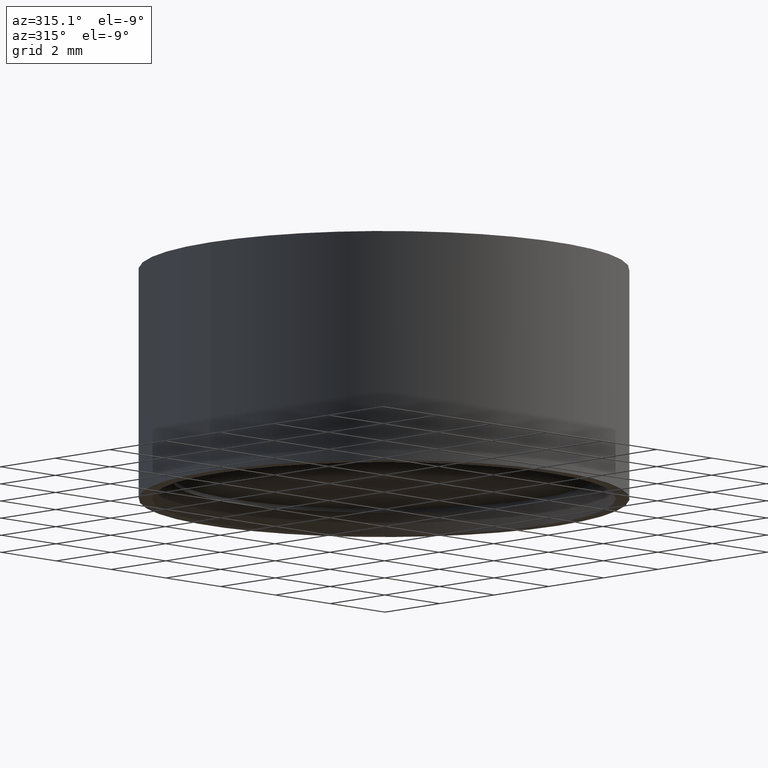
[diagram: clean part render]
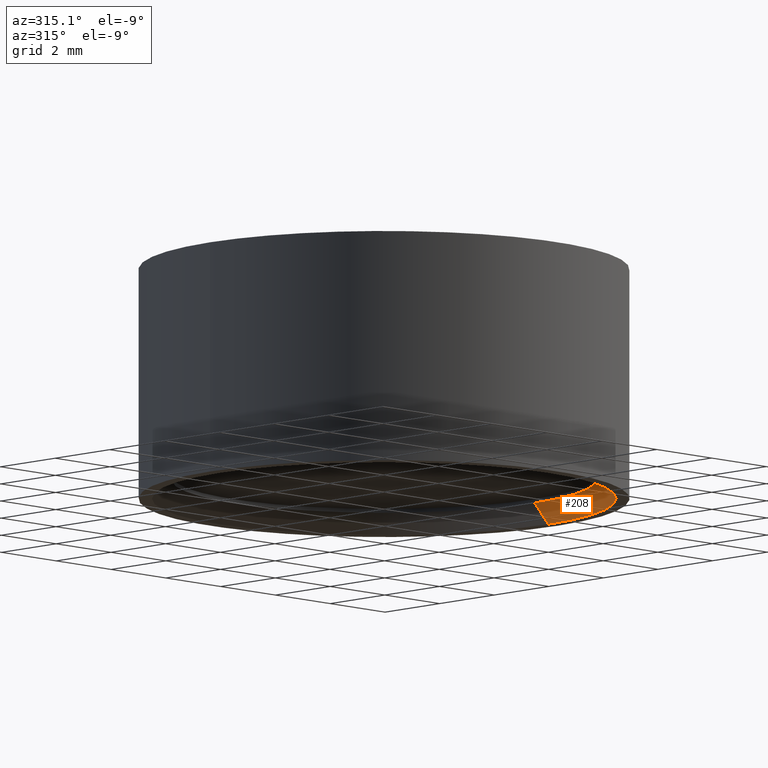
[diagram: same view with one face highlighted and labeled with its STEP entity id]
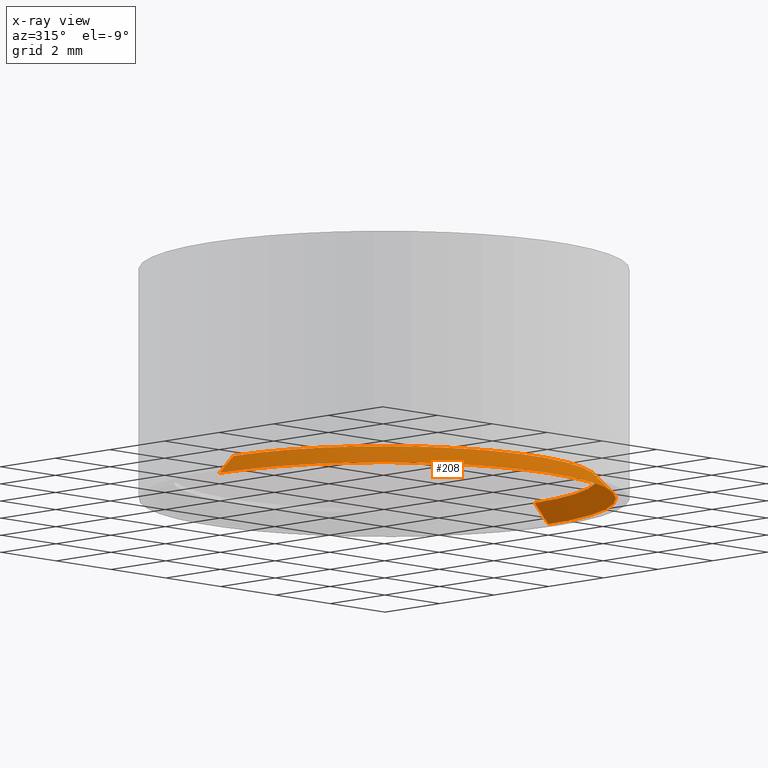
[diagram: x-ray of the same camera — body ghosted, the highlighted face saturated]
A machine part, auxiliary view. The second image highlights one B-rep face of the part: STEP entity #208.
The next image is the same camera in x-ray: the body ghosted, the highlighted face saturated — about 0% of this face is hidden behind the body in this view.
In plain terms, the highlighted conical surface has half-angle 45 deg.
Its self-contained STEP definition (entity closure, byte-faithful):
#27 = CARTESIAN_POINT ( 'NONE',  ( -5.500000000000000000, 0.000000000000000000, 0.4999999999999987232 ) ) ;
#51 = DIRECTION ( 'NONE',  ( 0.000000000000000000, 0.000000000000000000, -1.000000000000000000 ) ) ;
#60 = AXIS2_PLACEMENT_3D ( 'NONE', #96, #277, #205 ) ;
#74 = EDGE_CURVE ( 'NONE', #458, #298, #433, .T. ) ;
#83 = VECTOR ( 'NONE', #402, 1000.000000000000114 ) ;
#96 = CARTESIAN_POINT ( 'NONE',  ( 0.000000000000000000, 0.000000000000000000, 0.000000000000000000 ) ) ;
#105 = CARTESIAN_POINT ( 'NONE',  ( -5.999999999999998224, 0.000000000000000000, 0.000000000000000000 ) ) ;
#117 = AXIS2_PLACEMENT_3D ( 'NONE', #171, #350, #239 ) ;
#138 = EDGE_CURVE ( 'NONE', #298, #222, #216, .T. ) ;
#144 = ORIENTED_EDGE ( 'NONE', *, *, #499, .T. ) ;
#152 = VERTEX_POINT ( 'NONE', #359 ) ;
#171 = CARTESIAN_POINT ( 'NONE',  ( 0.000000000000000000, 0.000000000000000000, 0.4999999999999987232 ) ) ;
#173 = DIRECTION ( 'NONE',  ( 1.000000000000000000, 0.000000000000000000, 0.000000000000000000 ) ) ;
#177 = CONICAL_SURFACE ( 'NONE', #117, 5.500000000000000000, 0.7853981633974482790 ) ;
#196 = LINE ( 'NONE', #465, #466 ) ;
#205 = DIRECTION ( 'NONE',  ( 1.000000000000000000, 0.000000000000000000, 0.000000000000000000 ) ) ;
#208 = ADVANCED_FACE ( 'NONE', ( #393 ), #177, .F. ) ;
#216 = CIRCLE ( 'NONE', #60, 5.999999999999998224 ) ;
#222 = VERTEX_POINT ( 'NONE', #328 ) ;
#239 = DIRECTION ( 'NONE',  ( -1.000000000000000000, 0.000000000000000000, 0.000000000000000000 ) ) ;
#250 = CARTESIAN_POINT ( 'NONE',  ( -5.500000000000000000, 0.000000000000000000, 0.4999999999999987232 ) ) ;
#256 = CIRCLE ( 'NONE', #331, 5.500000000000000000 ) ;
#277 = DIRECTION ( 'NONE',  ( 0.000000000000000000, 0.000000000000000000, 1.000000000000000000 ) ) ;
#298 = VERTEX_POINT ( 'NONE', #105 ) ;
#328 = CARTESIAN_POINT ( 'NONE',  ( 5.999999999999998224, 7.347880794884117764E-16, 0.000000000000000000 ) ) ;
#331 = AXIS2_PLACEMENT_3D ( 'NONE', #396, #51, #173 ) ;
#333 = EDGE_LOOP ( 'NONE', ( #500, #144, #488, #336 ) ) ;
#336 = ORIENTED_EDGE ( 'NONE', *, *, #74, .F. ) ;
#350 = DIRECTION ( 'NONE',  ( 0.000000000000000000, 0.000000000000000000, -1.000000000000000000 ) ) ;
#359 = CARTESIAN_POINT ( 'NONE',  ( 5.500000000000000000, 6.735557395310442023E-16, 0.4999999999999987232 ) ) ;
#378 = DIRECTION ( 'NONE',  ( 0.7071067811865474617, 8.659560562354932858E-17, -0.7071067811865474617 ) ) ;
#393 = FACE_OUTER_BOUND ( 'NONE', #333, .T. ) ;
#396 = CARTESIAN_POINT ( 'NONE',  ( 0.000000000000000000, 0.000000000000000000, 0.4999999999999987232 ) ) ;
#402 = DIRECTION ( 'NONE',  ( -0.7071067811865474617, 0.000000000000000000, -0.7071067811865474617 ) ) ;
#422 = EDGE_CURVE ( 'NONE', #152, #458, #256, .T. ) ;
#433 = LINE ( 'NONE', #250, #83 ) ;
#458 = VERTEX_POINT ( 'NONE', #27 ) ;
#465 = CARTESIAN_POINT ( 'NONE',  ( 5.500000000000000000, 6.735557395310442023E-16, 0.4999999999999987232 ) ) ;
#466 = VECTOR ( 'NONE', #378, 1000.000000000000114 ) ;
#488 = ORIENTED_EDGE ( 'NONE', *, *, #138, .F. ) ;
#499 = EDGE_CURVE ( 'NONE', #152, #222, #196, .T. ) ;
#500 = ORIENTED_EDGE ( 'NONE', *, *, #422, .F. ) ;